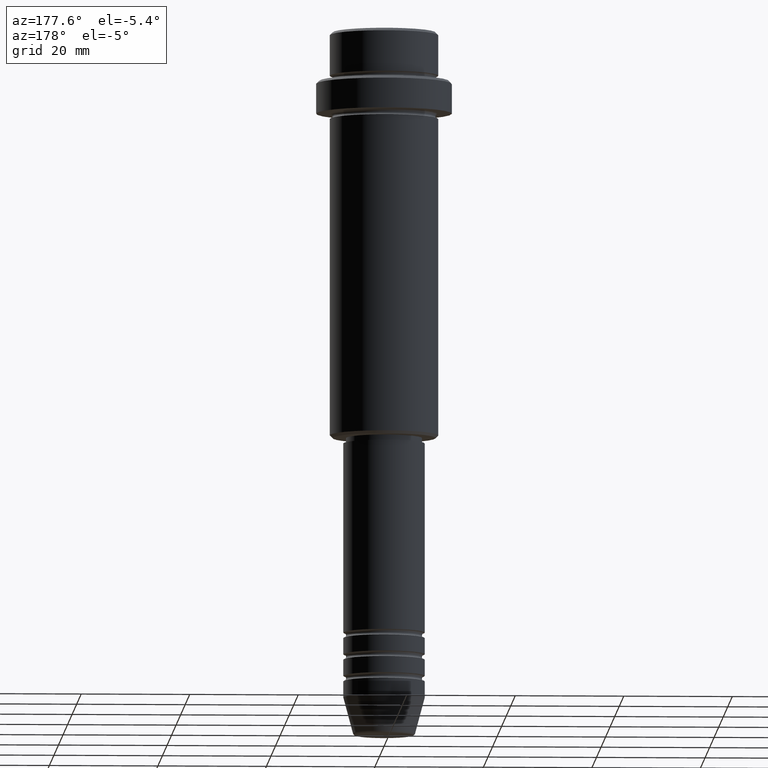
[diagram: clean part render]
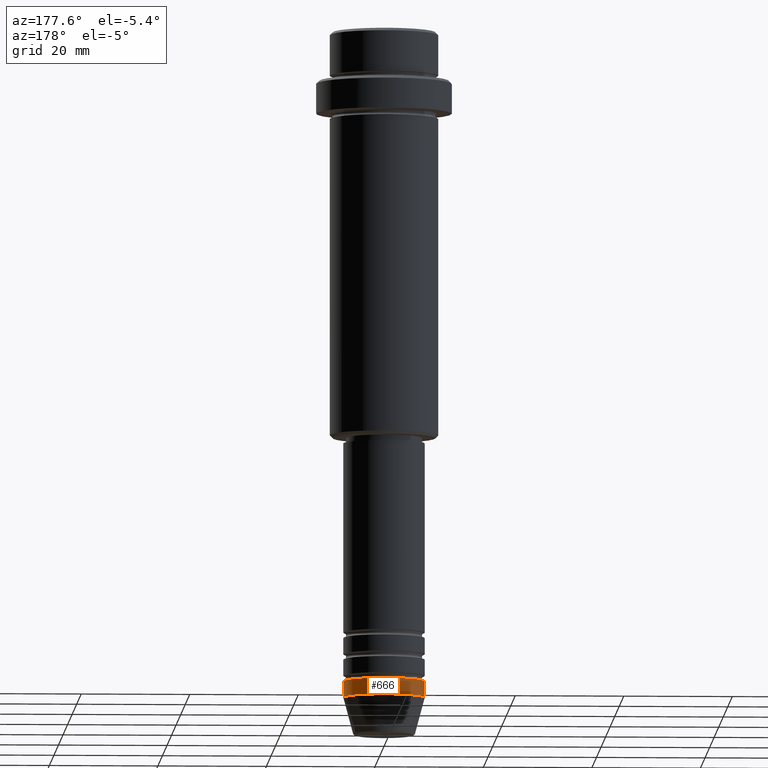
[diagram: same view with one face highlighted and labeled with its STEP entity id]
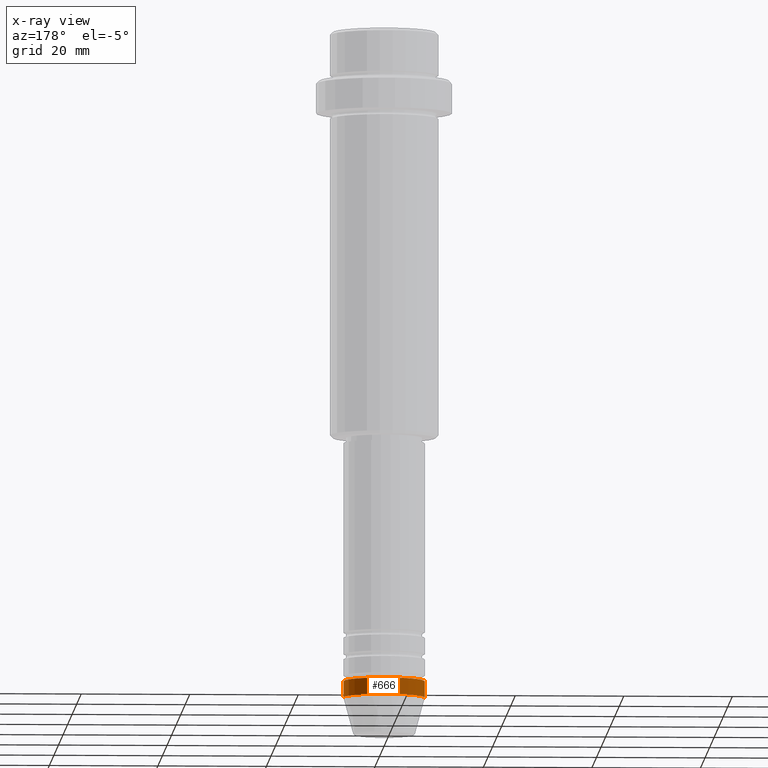
[diagram: x-ray of the same camera — body ghosted, the highlighted face saturated]
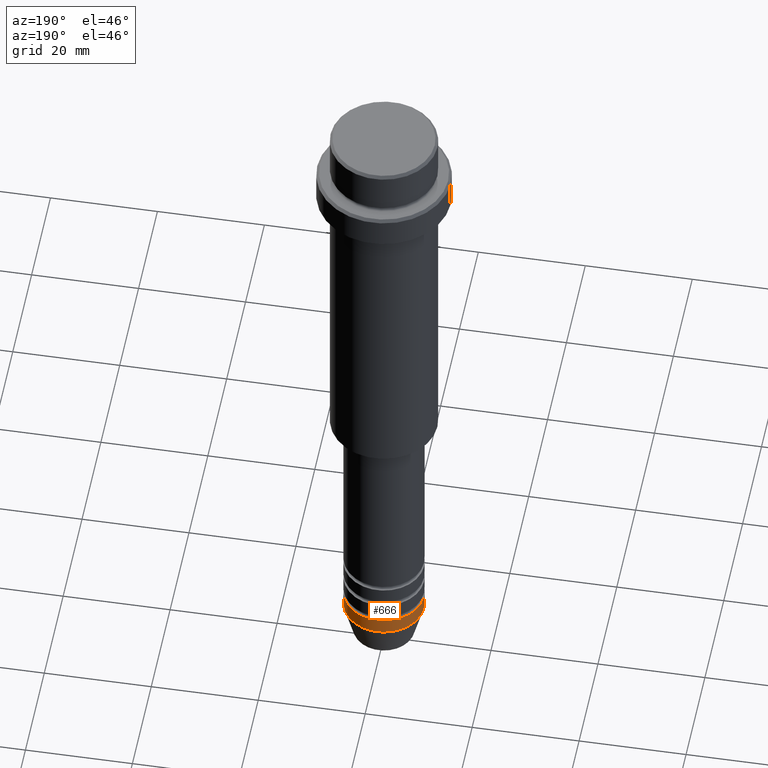
[diagram: same view with one face highlighted and labeled with its STEP entity id]
A machine part, auxiliary view. The second image highlights one B-rep face of the part: STEP entity #666.
The next image is the same camera in x-ray: the body ghosted, the highlighted face saturated — about 0% of this face is hidden behind the body in this view.
A second angle (auxiliary view) of the same face is appended — the face is thin or edge-on in the first view.
In plain terms, the highlighted cylindrical surface (partial cylindrical patch) has radius 7.5 mm, axis along (-0, -0, 1).
Its self-contained STEP definition (entity closure, byte-faithful):
#10 = VERTEX_POINT ( 'NONE', #621 ) ;
#18 = LINE ( 'NONE', #424, #1160 ) ;
#71 = DIRECTION ( 'NONE',  ( 1.000000000000000000, 0.000000000000000000, 0.000000000000000000 ) ) ;
#90 = CARTESIAN_POINT ( 'NONE',  ( 7.500000000000000000, 0.000000000000000000, -120.0000000000000000 ) ) ;
#125 = CYLINDRICAL_SURFACE ( 'NONE', #758, 7.500000000000000000 ) ;
#145 = DIRECTION ( 'NONE',  ( 1.000000000000000000, 0.000000000000000000, 0.000000000000000000 ) ) ;
#194 = EDGE_CURVE ( 'NONE', #799, #525, #18, .T. ) ;
#201 = CIRCLE ( 'NONE', #1022, 7.500000000000000000 ) ;
#263 = DIRECTION ( 'NONE',  ( -0.000000000000000000, -0.000000000000000000, 1.000000000000000000 ) ) ;
#288 = CARTESIAN_POINT ( 'NONE',  ( -7.500000000000000000, 9.184850993605147944E-16, -120.0000000000000000 ) ) ;
#292 = ORIENTED_EDGE ( 'NONE', *, *, #761, .T. ) ;
#424 = CARTESIAN_POINT ( 'NONE',  ( -7.500000000000000000, 9.184850993605147944E-16, 0.000000000000000000 ) ) ;
#425 = EDGE_CURVE ( 'NONE', #10, #449, #1040, .T. ) ;
#449 = VERTEX_POINT ( 'NONE', #90 ) ;
#485 = EDGE_CURVE ( 'NONE', #449, #525, #201, .T. ) ;
#525 = VERTEX_POINT ( 'NONE', #288 ) ;
#537 = DIRECTION ( 'NONE',  ( -0.000000000000000000, -0.000000000000000000, 1.000000000000000000 ) ) ;
#586 = DIRECTION ( 'NONE',  ( -0.000000000000000000, -0.000000000000000000, 1.000000000000000000 ) ) ;
#621 = CARTESIAN_POINT ( 'NONE',  ( 7.500000000000000000, 0.000000000000000000, -123.0000000000000000 ) ) ;
#666 = ADVANCED_FACE ( 'NONE', ( #1089 ), #125, .T. ) ;
#687 = CARTESIAN_POINT ( 'NONE',  ( -7.500000000000000000, 9.184850993605147944E-16, -123.0000000000000000 ) ) ;
#758 = AXIS2_PLACEMENT_3D ( 'NONE', #1208, #537, #980 ) ;
#761 = EDGE_CURVE ( 'NONE', #10, #799, #1023, .T. ) ;
#799 = VERTEX_POINT ( 'NONE', #687 ) ;
#853 = ORIENTED_EDGE ( 'NONE', *, *, #485, .F. ) ;
#870 = VECTOR ( 'NONE', #263, 1000.000000000000000 ) ;
#927 = ORIENTED_EDGE ( 'NONE', *, *, #194, .T. ) ;
#933 = ORIENTED_EDGE ( 'NONE', *, *, #425, .F. ) ;
#980 = DIRECTION ( 'NONE',  ( 1.000000000000000000, 0.000000000000000000, 0.000000000000000000 ) ) ;
#1022 = AXIS2_PLACEMENT_3D ( 'NONE', #1249, #1163, #71 ) ;
#1023 = CIRCLE ( 'NONE', #1204, 7.500000000000000000 ) ;
#1040 = LINE ( 'NONE', #1169, #870 ) ;
#1089 = FACE_OUTER_BOUND ( 'NONE', #1207, .T. ) ;
#1134 = CARTESIAN_POINT ( 'NONE',  ( 0.000000000000000000, 0.000000000000000000, -123.0000000000000000 ) ) ;
#1160 = VECTOR ( 'NONE', #1414, 1000.000000000000000 ) ;
#1163 = DIRECTION ( 'NONE',  ( -0.000000000000000000, -0.000000000000000000, 1.000000000000000000 ) ) ;
#1169 = CARTESIAN_POINT ( 'NONE',  ( 7.500000000000000000, 0.000000000000000000, 0.000000000000000000 ) ) ;
#1204 = AXIS2_PLACEMENT_3D ( 'NONE', #1134, #586, #145 ) ;
#1207 = EDGE_LOOP ( 'NONE', ( #292, #927, #853, #933 ) ) ;
#1208 = CARTESIAN_POINT ( 'NONE',  ( 0.000000000000000000, 0.000000000000000000, 0.000000000000000000 ) ) ;
#1249 = CARTESIAN_POINT ( 'NONE',  ( 0.000000000000000000, 0.000000000000000000, -120.0000000000000000 ) ) ;
#1414 = DIRECTION ( 'NONE',  ( -0.000000000000000000, -0.000000000000000000, 1.000000000000000000 ) ) ;